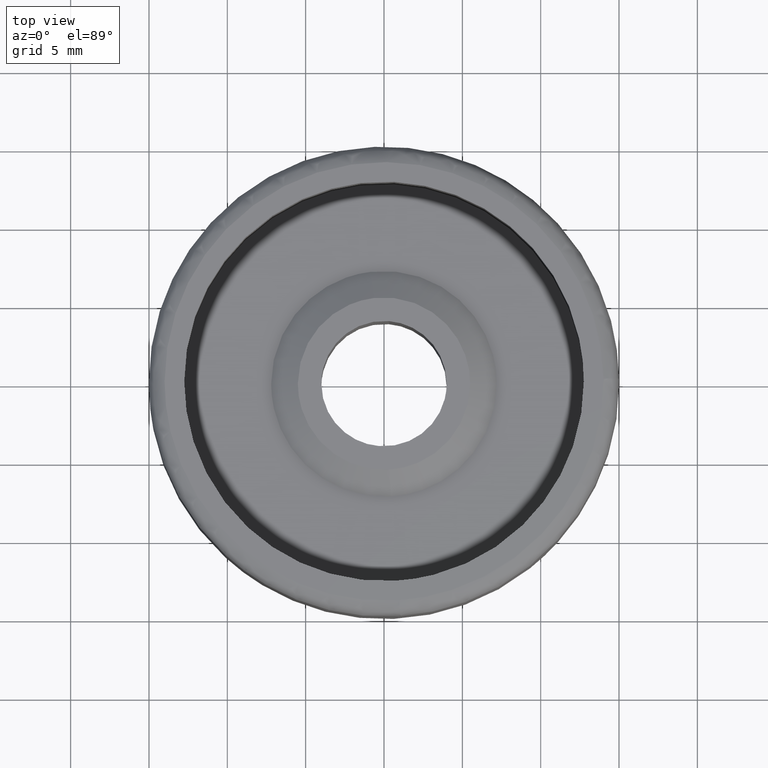
[diagram: clean part render]
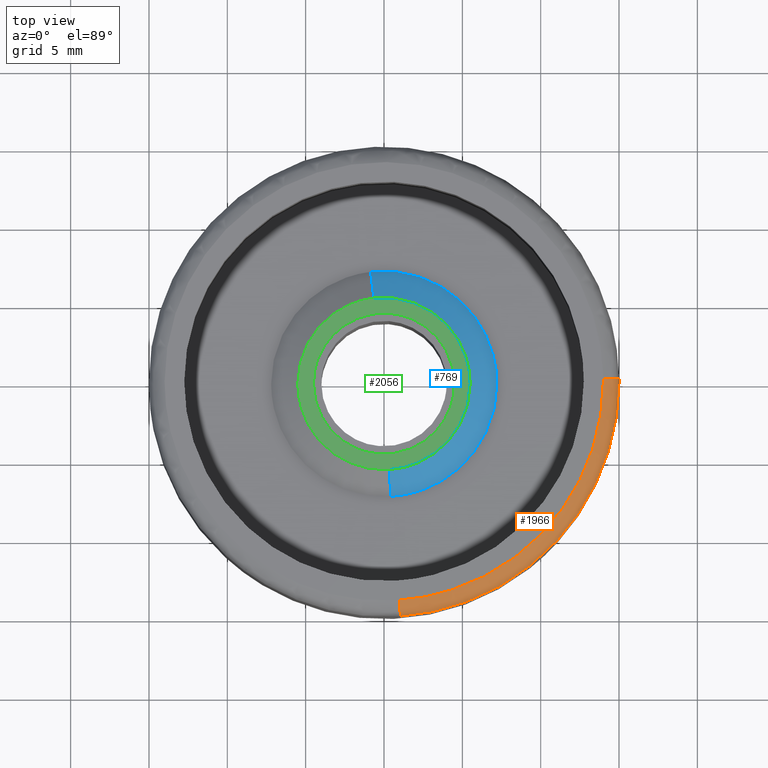
[diagram: same view with three faces highlighted in distinct colors, each labeled with its STEP entity id]
A machine part, top view with three faces highlighted in distinct colors.
Their STEP definitions:

[orange] entity #1966 — the highlighted face is a freeform B-spline surface patch.
#1595=CARTESIAN_POINT('',(14.998815787281290,0.188480712599963,18.499998351190680));
#1596=VERTEX_POINT('',#1595);
#1612=CARTESIAN_POINT('',(15.0,0.0,18.500000000000000));
#1613=VERTEX_POINT('',#1612);
#1614=CARTESIAN_POINT('',(14.998815787281290,0.188480712599963,18.499998351190687));
#1615=CARTESIAN_POINT('',(14.999999999997007,0.094244076467763,18.499999175595342));
#1616=CARTESIAN_POINT('',(15.0,0.0,18.500000000000000));
#1624=(BOUNDED_CURVE()B_SPLINE_CURVE(2,(#1614,#1615,#1616),.UNSPECIFIED.,.F.,.U.)B_SPLINE_CURVE_WITH_KNOTS((3,3),(0.497784411834908,0.500000000000000),.UNSPECIFIED.)CURVE()GEOMETRIC_REPRESENTATION_ITEM()RATIONAL_B_SPLINE_CURVE((0.994854562431305,0.997404277003045,1.0))REPRESENTATION_ITEM(''));
#1625=EDGE_CURVE('',#1596,#1613,#1624,.T.);
#1627=CARTESIAN_POINT('',(1.045989940321698,-14.963485725077071,18.499998345610489));
#1628=VERTEX_POINT('',#1627);
#1629=CARTESIAN_POINT('',(15.0,0.0,18.500000000000000));
#1630=CARTESIAN_POINT('',(14.999999999999815,-13.988060986637265,18.499999172805243));
#1631=CARTESIAN_POINT('',(1.045989940321698,-14.963485725077065,18.499998345610496));
#1639=(BOUNDED_CURVE()B_SPLINE_CURVE(2,(#1629,#1630,#1631),.UNSPECIFIED.,.F.,.U.)B_SPLINE_CURVE_WITH_KNOTS((3,3),(0.500000000000000,0.737833788060594),.UNSPECIFIED.)CURVE()GEOMETRIC_REPRESENTATION_ITEM()RATIONAL_B_SPLINE_CURVE((1.0,0.721360385089344,0.972880091122261))REPRESENTATION_ITEM(''));
#1640=EDGE_CURVE('',#1613,#1628,#1639,.T.);
#1848=CARTESIAN_POINT('',(0.976265522080275,-13.965919434004361,19.500000000000000));
#1849=VERTEX_POINT('',#1848);
#1850=CARTESIAN_POINT('',(0.976265522080276,-13.965919434004359,19.500000000000004));
#1851=CARTESIAN_POINT('',(1.045994472338115,-14.963487066586335,19.499999999521194));
#1852=CARTESIAN_POINT('',(1.045989940321698,-14.963485725077067,18.499998345610486));
#1860=(BOUNDED_CURVE()B_SPLINE_CURVE(2,(#1850,#1851,#1852),.UNSPECIFIED.,.F.,.U.)B_SPLINE_CURVE_WITH_KNOTS((3,3),(-1.734750791160875,-0.265247489273916),.UNSPECIFIED.)CURVE()GEOMETRIC_REPRESENTATION_ITEM()RATIONAL_B_SPLINE_CURVE((0.869031711702906,0.614497918858297,0.869032307398018))REPRESENTATION_ITEM(''));
#1861=EDGE_CURVE('',#1849,#1628,#1860,.T.);
#1880=CARTESIAN_POINT('',(13.998894619837420,0.175924558424704,19.500000000000000));
#1881=VERTEX_POINT('',#1880);
#1897=CARTESIAN_POINT('',(13.998894619837426,0.175924558424704,19.499999999999996));
#1898=CARTESIAN_POINT('',(14.998817373357861,0.188485676160666,19.499999998030702));
#1899=CARTESIAN_POINT('',(14.998815787281293,0.188480712599963,18.499998351190683));
#1907=(BOUNDED_CURVE()B_SPLINE_CURVE(2,(#1897,#1898,#1899),.UNSPECIFIED.,.F.,.U.)B_SPLINE_CURVE_WITH_KNOTS((3,3),(-1.734750789612121,-0.265247495072267),.UNSPECIFIED.)CURVE()GEOMETRIC_REPRESENTATION_ITEM()RATIONAL_B_SPLINE_CURVE((0.889029722851253,0.628638642994290,0.889030330748368))REPRESENTATION_ITEM(''));
#1908=EDGE_CURVE('',#1881,#1596,#1907,.T.);
#1915=CARTESIAN_POINT('',(13.929362452612859,0.175050745400173,19.497579327326303));
#1916=CARTESIAN_POINT('',(14.094672226188708,-12.979190602349494,19.497579327326299));
#1917=CARTESIAN_POINT('',(0.971416435151624,-13.896551054461080,19.497579327326306));
#1918=CARTESIAN_POINT('',(15.076349038249713,0.189464962666956,19.577537938228893));
#1919=CARTESIAN_POINT('',(15.255270927484926,-14.047937112748922,19.577537938228886));
#1920=CARTESIAN_POINT('',(1.051405854909818,-15.040835848564827,19.577537938228890));
#1921=CARTESIAN_POINT('',(14.996395080898305,0.188460178716530,18.430460899900229));
#1922=CARTESIAN_POINT('',(15.174368098953584,-13.973437102040874,18.430460899900236));
#1923=CARTESIAN_POINT('',(1.045829965238572,-14.961070227265223,18.430460899900229));
#1931=(BOUNDED_SURFACE()B_SPLINE_SURFACE(2,2,((#1915,#1918,#1921),(#1916,#1919,#1922),(#1917,#1920,#1923)),.UNSPECIFIED.,.F.,.F.,.U.)B_SPLINE_SURFACE_WITH_KNOTS((3,3),(3,3),(0.0,23.848304003572871),(0.0,1.822376984477074),.UNSPECIFIED.)GEOMETRIC_REPRESENTATION_ITEM()RATIONAL_B_SPLINE_SURFACE(((0.916342329272574,0.601326038482542,0.916342933350413),(0.658687493091140,0.432246692273748,0.658687927315888),(0.895729942378059,0.587799690785838,0.895730532867651)))REPRESENTATION_ITEM('')SURFACE());
#1932=ORIENTED_EDGE('',*,*,#1640,.F.);
#1933=ORIENTED_EDGE('',*,*,#1625,.F.);
#1934=ORIENTED_EDGE('',*,*,#1908,.F.);
#1935=CARTESIAN_POINT('',(14.0,0.0,19.500000000000000));
#1936=VERTEX_POINT('',#1935);
#1937=CARTESIAN_POINT('',(13.998894619837424,0.175924558424704,19.499999999999996));
#1938=CARTESIAN_POINT('',(14.000000000000005,0.087965751931862,19.500000000000004));
#1939=CARTESIAN_POINT('',(14.0,0.0,19.500000000000000));
#1947=(BOUNDED_CURVE()B_SPLINE_CURVE(2,(#1937,#1938,#1939),.UNSPECIFIED.,.F.,.U.)B_SPLINE_CURVE_WITH_KNOTS((3,3),(0.497784295920587,0.500000000000000),.UNSPECIFIED.)CURVE()GEOMETRIC_REPRESENTATION_ITEM()RATIONAL_B_SPLINE_CURVE((0.994854295641387,0.997404141200971,1.0))REPRESENTATION_ITEM(''));
#1948=EDGE_CURVE('',#1881,#1936,#1947,.T.);
#1949=ORIENTED_EDGE('',*,*,#1948,.T.);
#1950=CARTESIAN_POINT('',(14.0,0.0,19.500000000000000));
#1951=CARTESIAN_POINT('',(13.999999999999993,-13.055515861718762,19.500000000000004));
#1952=CARTESIAN_POINT('',(0.976265522080275,-13.965919434004357,19.500000000000004));
#1960=(BOUNDED_CURVE()B_SPLINE_CURVE(2,(#1950,#1951,#1952),.UNSPECIFIED.,.F.,.U.)B_SPLINE_CURVE_WITH_KNOTS((3,3),(0.500000000000000,0.737833686534952),.UNSPECIFIED.)CURVE()GEOMETRIC_REPRESENTATION_ITEM()RATIONAL_B_SPLINE_CURVE((1.0,0.721360504034033,0.972879876386680))REPRESENTATION_ITEM(''));
#1961=EDGE_CURVE('',#1936,#1849,#1960,.T.);
#1962=ORIENTED_EDGE('',*,*,#1961,.T.);
#1963=ORIENTED_EDGE('',*,*,#1861,.T.);
#1964=EDGE_LOOP('',(#1932,#1933,#1934,#1949,#1962,#1963));
#1965=FACE_OUTER_BOUND('',#1964,.T.);
#1966=ADVANCED_FACE('',(#1965),#1931,.T.);

[blue] entity #769 — the highlighted face is a freeform B-spline surface patch.
#667=CARTESIAN_POINT('',(-0.644171835639259,5.419349490129710,11.525000000000006));
#668=CARTESIAN_POINT('',(-0.489072381541763,5.437785411310767,11.525000000000002));
#669=CARTESIAN_POINT('',(-0.333172404511482,5.447320662387337,11.525000000000000));
#670=CARTESIAN_POINT('',(5.114148257875855,5.780493066898820,11.525000000000000));
#671=CARTESIAN_POINT('',(5.447320662387337,0.333172404511482,11.525000000000000));
#672=CARTESIAN_POINT('',(5.780493066898820,-5.114148257875855,11.525000000000000));
#673=CARTESIAN_POINT('',(0.333172404511482,-5.447320662387337,11.525000000000000));
#674=CARTESIAN_POINT('',(-0.854988355875896,7.192926567310616,10.474375000000004));
#675=CARTESIAN_POINT('',(-0.649129887809731,7.217395966727942,10.474374999999997));
#676=CARTESIAN_POINT('',(-0.442208911654458,7.230051795793695,10.474375000000000));
#677=CARTESIAN_POINT('',(6.787842884139237,7.672260707448152,10.474374999999998));
#678=CARTESIAN_POINT('',(7.230051795793695,0.442208911654458,10.474375000000000));
#679=CARTESIAN_POINT('',(7.672260707448152,-6.787842884139237,10.474374999999998));
#680=CARTESIAN_POINT('',(0.442208911654458,-7.230051795793695,10.474375000000000));
#688=(BOUNDED_SURFACE()B_SPLINE_SURFACE(2,1,((#667,#674),(#668,#675),(#669,#676),(#670,#677),(#671,#678),(#672,#679),(#673,#680)),.UNSPECIFIED.,.F.,.F.,.U.)B_SPLINE_SURFACE_WITH_KNOTS((3,2,2,3),(2,2),(0.0,0.480061092383547,12.481588401972200,24.483115711560849),(0.0,2.072156399630892),.UNSPECIFIED.)GEOMETRIC_REPRESENTATION_ITEM()RATIONAL_B_SPLINE_SURFACE(((0.977505800795127,0.977505800795127),(0.988284271247462,0.988284271247462),(1.0,1.0),(0.707106781186548,0.707106781186548),(1.0,1.0),(0.707106781186548,0.707106781186548),(1.0,1.0)))REPRESENTATION_ITEM('')SURFACE());
#689=CARTESIAN_POINT('',(-0.849846489608825,7.149668589820059,10.499999999993459));
#690=VERTEX_POINT('',#689);
#691=CARTESIAN_POINT('',(7.200000000000000,0.0,10.500000000000000));
#692=VERTEX_POINT('',#691);
#693=CARTESIAN_POINT('',(-0.849846489608825,7.149668589820060,10.499999999993461));
#694=CARTESIAN_POINT('',(-0.426413661573438,7.200000000000000,10.500000000000000));
#695=CARTESIAN_POINT('',(0.0,7.200000000000000,10.500000000000000));
#696=CARTESIAN_POINT('',(7.200000000000000,7.200000000000000,10.500000000000000));
#697=CARTESIAN_POINT('',(7.200000000000000,0.0,10.500000000000000));
#705=(BOUNDED_CURVE()B_SPLINE_CURVE(2,(#693,#694,#695,#696,#697),.UNSPECIFIED.,.F.,.U.)B_SPLINE_CURVE_WITH_KNOTS((3,2,3),(0.229562473511916,0.250000000000000,0.500000000000000),.UNSPECIFIED.)CURVE()GEOMETRIC_REPRESENTATION_ITEM()RATIONAL_B_SPLINE_CURVE((0.956026754180579,0.976055948329280,1.0,0.707106781186547,1.0))REPRESENTATION_ITEM(''));
#706=EDGE_CURVE('',#690,#692,#705,.T.);
#707=ORIENTED_EDGE('',*,*,#706,.F.);
#708=CARTESIAN_POINT('',(-0.649188290627220,5.461552395000489,11.499999999998771));
#709=VERTEX_POINT('',#708);
#710=CARTESIAN_POINT('',(-0.649188290627220,5.461552395000489,11.499999999998771));
#711=CARTESIAN_POINT('',(-0.849846489608825,7.149668589820059,10.499999999993459));
#712=QUASI_UNIFORM_CURVE('',1,(#710,#711),.UNSPECIFIED.,.F.,.U.);
#713=EDGE_CURVE('',#709,#690,#712,.T.);
#714=ORIENTED_EDGE('',*,*,#713,.F.);
#715=CARTESIAN_POINT('',(5.500000000000000,0.0,11.500000000000000));
#716=VERTEX_POINT('',#715);
#717=CARTESIAN_POINT('',(-0.649188290627220,5.461552395000488,11.499999999998767));
#718=CARTESIAN_POINT('',(-0.325732658100463,5.500000000000000,11.500000000000005));
#719=CARTESIAN_POINT('',(0.0,5.500000000000000,11.500000000000000));
#720=CARTESIAN_POINT('',(5.500000000000001,5.500000000000001,11.500000000000000));
#721=CARTESIAN_POINT('',(5.500000000000000,0.0,11.500000000000000));
#729=(BOUNDED_CURVE()B_SPLINE_CURVE(2,(#717,#718,#719,#720,#721),.UNSPECIFIED.,.F.,.U.)B_SPLINE_CURVE_WITH_KNOTS((3,2,3),(0.229562473514728,0.250000000000000,0.500000000000000),.UNSPECIFIED.)CURVE()GEOMETRIC_REPRESENTATION_ITEM()RATIONAL_B_SPLINE_CURVE((0.956026754186090,0.976055948332574,1.0,0.707106781186548,1.0))REPRESENTATION_ITEM(''));
#730=EDGE_CURVE('',#709,#716,#729,.T.);
#731=ORIENTED_EDGE('',*,*,#730,.T.);
#732=CARTESIAN_POINT('',(0.335766967512557,-5.489741391326234,11.499999999993950));
#733=VERTEX_POINT('',#732);
#734=CARTESIAN_POINT('',(5.500000000000000,0.0,11.500000000000000));
#735=CARTESIAN_POINT('',(5.500000000000000,-5.173883367848742,11.500000000000000));
#736=CARTESIAN_POINT('',(0.335766967512557,-5.489741391326235,11.499999999993957));
#744=(BOUNDED_CURVE()B_SPLINE_CURVE(2,(#734,#735,#736),.UNSPECIFIED.,.F.,.U.)B_SPLINE_CURVE_WITH_KNOTS((3,3),(0.500000000000000,0.739332962237555),.UNSPECIFIED.)CURVE()GEOMETRIC_REPRESENTATION_ITEM()RATIONAL_B_SPLINE_CURVE((1.0,0.719603993288336,0.976072041663743))REPRESENTATION_ITEM(''));
#745=EDGE_CURVE('',#716,#733,#744,.T.);
#746=ORIENTED_EDGE('',*,*,#745,.T.);
#747=CARTESIAN_POINT('',(0.439549484679779,-7.186570548639866,10.499999999997540));
#748=VERTEX_POINT('',#747);
#749=CARTESIAN_POINT('',(0.335766967512557,-5.489741391326234,11.499999999993950));
#750=CARTESIAN_POINT('',(0.439549484679779,-7.186570548639866,10.499999999997540));
#751=QUASI_UNIFORM_CURVE('',1,(#749,#750),.UNSPECIFIED.,.F.,.U.);
#752=EDGE_CURVE('',#733,#748,#751,.T.);
#753=ORIENTED_EDGE('',*,*,#752,.T.);
#754=CARTESIAN_POINT('',(7.200000000000000,0.0,10.500000000000000));
#755=CARTESIAN_POINT('',(7.200000000000000,-6.773083681667077,10.500000000000000));
#756=CARTESIAN_POINT('',(0.439549484679779,-7.186570548639866,10.499999999997540));
#764=(BOUNDED_CURVE()B_SPLINE_CURVE(2,(#754,#755,#756),.UNSPECIFIED.,.F.,.U.)B_SPLINE_CURVE_WITH_KNOTS((3,3),(0.500000000000000,0.739332962240597),.UNSPECIFIED.)CURVE()GEOMETRIC_REPRESENTATION_ITEM()RATIONAL_B_SPLINE_CURVE((1.0,0.719603993284772,0.976072041670263))REPRESENTATION_ITEM(''));
#765=EDGE_CURVE('',#692,#748,#764,.T.);
#766=ORIENTED_EDGE('',*,*,#765,.F.);
#767=EDGE_LOOP('',(#707,#714,#731,#746,#753,#766));
#768=FACE_OUTER_BOUND('',#767,.T.);
#769=ADVANCED_FACE('',(#768),#688,.T.);

[green] entity #2056 — the highlighted face is a freeform B-spline surface patch.
#503=CARTESIAN_POINT('',(-4.500000000000000,0.0,11.500000000000000));
#504=VERTEX_POINT('',#503);
#505=CARTESIAN_POINT('',(-0.353065930799224,-4.486128001797193,11.500000000000000));
#506=VERTEX_POINT('',#505);
#507=CARTESIAN_POINT('',(-4.500000000000000,0.0,11.500000000000000));
#508=CARTESIAN_POINT('',(-4.499999999999999,-4.159757212417433,11.500000000000002));
#509=CARTESIAN_POINT('',(-0.353065930799224,-4.486128001797193,11.499999999999998));
#517=(BOUNDED_CURVE()B_SPLINE_CURVE(2,(#507,#508,#509),.UNSPECIFIED.,.F.,.U.)B_SPLINE_CURVE_WITH_KNOTS((3,3),(0.0,0.236331300630939),.UNSPECIFIED.)CURVE()GEOMETRIC_REPRESENTATION_ITEM()RATIONAL_B_SPLINE_CURVE((1.0,0.723120658607339,0.969723356168000))REPRESENTATION_ITEM(''));
#518=EDGE_CURVE('',#504,#506,#517,.T.);
#559=CARTESIAN_POINT('',(0.353065930799223,4.486128001797193,11.500000000000000));
#560=VERTEX_POINT('',#559);
#566=CARTESIAN_POINT('',(0.353065930799222,4.486128001797193,11.500000000000004));
#567=CARTESIAN_POINT('',(0.176805481558544,4.500000000000000,11.500000000000004));
#568=CARTESIAN_POINT('',(0.0,4.500000000000000,11.500000000000000));
#569=CARTESIAN_POINT('',(-4.500000000000000,4.500000000000000,11.500000000000002));
#570=CARTESIAN_POINT('',(-4.500000000000000,0.0,11.500000000000000));
#578=(BOUNDED_CURVE()B_SPLINE_CURVE(2,(#566,#567,#568,#569,#570),.UNSPECIFIED.,.F.,.U.)B_SPLINE_CURVE_WITH_KNOTS((3,2,3),(0.736331300630939,0.750000000000000,1.0),.UNSPECIFIED.)CURVE()GEOMETRIC_REPRESENTATION_ITEM()RATIONAL_B_SPLINE_CURVE((0.969723356168001,0.983986122579209,1.0,0.707106781186547,1.0))REPRESENTATION_ITEM(''));
#579=EDGE_CURVE('',#560,#504,#578,.T.);
#602=CARTESIAN_POINT('',(4.500000000000000,0.0,11.500000000000000));
#603=VERTEX_POINT('',#602);
#604=CARTESIAN_POINT('',(-0.353065930799224,-4.486128001797193,11.499999999999995));
#605=CARTESIAN_POINT('',(-0.176805481558545,-4.500000000000001,11.499999999999996));
#606=CARTESIAN_POINT('',(0.0,-4.500000000000000,11.500000000000000));
#607=CARTESIAN_POINT('',(4.500000000000000,-4.500000000000000,11.500000000000002));
#608=CARTESIAN_POINT('',(4.500000000000000,0.0,11.500000000000000));
#616=(BOUNDED_CURVE()B_SPLINE_CURVE(2,(#604,#605,#606,#607,#608),.UNSPECIFIED.,.F.,.U.)B_SPLINE_CURVE_WITH_KNOTS((3,2,3),(0.236331300630939,0.250000000000000,0.500000000000000),.UNSPECIFIED.)CURVE()GEOMETRIC_REPRESENTATION_ITEM()RATIONAL_B_SPLINE_CURVE((0.969723356168000,0.983986122579209,1.0,0.707106781186547,1.0))REPRESENTATION_ITEM(''));
#617=EDGE_CURVE('',#506,#603,#616,.T.);
#619=CARTESIAN_POINT('',(4.500000000000000,0.0,11.500000000000000));
#620=CARTESIAN_POINT('',(4.500000000000000,4.159757212417430,11.500000000000000));
#621=CARTESIAN_POINT('',(0.353065930799223,4.486128001797193,11.500000000000000));
#629=(BOUNDED_CURVE()B_SPLINE_CURVE(2,(#619,#620,#621),.UNSPECIFIED.,.F.,.U.)B_SPLINE_CURVE_WITH_KNOTS((3,3),(0.500000000000000,0.736331300630939),.UNSPECIFIED.)CURVE()GEOMETRIC_REPRESENTATION_ITEM()RATIONAL_B_SPLINE_CURVE((1.0,0.723120658607339,0.969723356168000))REPRESENTATION_ITEM(''));
#630=EDGE_CURVE('',#603,#560,#629,.T.);
#708=CARTESIAN_POINT('',(-0.649188290627220,5.461552395000489,11.499999999998771));
#709=VERTEX_POINT('',#708);
#715=CARTESIAN_POINT('',(5.500000000000000,0.0,11.500000000000000));
#716=VERTEX_POINT('',#715);
#717=CARTESIAN_POINT('',(-0.649188290627220,5.461552395000488,11.499999999998767));
#718=CARTESIAN_POINT('',(-0.325732658100463,5.500000000000000,11.500000000000005));
#719=CARTESIAN_POINT('',(0.0,5.500000000000000,11.500000000000000));
#720=CARTESIAN_POINT('',(5.500000000000001,5.500000000000001,11.500000000000000));
#721=CARTESIAN_POINT('',(5.500000000000000,0.0,11.500000000000000));
#729=(BOUNDED_CURVE()B_SPLINE_CURVE(2,(#717,#718,#719,#720,#721),.UNSPECIFIED.,.F.,.U.)B_SPLINE_CURVE_WITH_KNOTS((3,2,3),(0.229562473514728,0.250000000000000,0.500000000000000),.UNSPECIFIED.)CURVE()GEOMETRIC_REPRESENTATION_ITEM()RATIONAL_B_SPLINE_CURVE((0.956026754186090,0.976055948332574,1.0,0.707106781186548,1.0))REPRESENTATION_ITEM(''));
#730=EDGE_CURVE('',#709,#716,#729,.T.);
#732=CARTESIAN_POINT('',(0.335766967512557,-5.489741391326234,11.499999999993950));
#733=VERTEX_POINT('',#732);
#734=CARTESIAN_POINT('',(5.500000000000000,0.0,11.500000000000000));
#735=CARTESIAN_POINT('',(5.500000000000000,-5.173883367848742,11.500000000000000));
#736=CARTESIAN_POINT('',(0.335766967512557,-5.489741391326235,11.499999999993957));
#744=(BOUNDED_CURVE()B_SPLINE_CURVE(2,(#734,#735,#736),.UNSPECIFIED.,.F.,.U.)B_SPLINE_CURVE_WITH_KNOTS((3,3),(0.500000000000000,0.739332962237555),.UNSPECIFIED.)CURVE()GEOMETRIC_REPRESENTATION_ITEM()RATIONAL_B_SPLINE_CURVE((1.0,0.719603993288336,0.976072041663743))REPRESENTATION_ITEM(''));
#745=EDGE_CURVE('',#716,#733,#744,.T.);
#819=CARTESIAN_POINT('',(-5.500000000000000,0.0,11.500000000000000));
#820=VERTEX_POINT('',#819);
#821=CARTESIAN_POINT('',(0.335766967512557,-5.489741391326235,11.499999999993953));
#822=CARTESIAN_POINT('',(0.168040198212652,-5.499999999999999,11.499999999999996));
#823=CARTESIAN_POINT('',(0.0,-5.500000000000000,11.500000000000000));
#824=CARTESIAN_POINT('',(-5.500000000000001,-5.500000000000001,11.500000000000000));
#825=CARTESIAN_POINT('',(-5.500000000000000,0.0,11.500000000000000));
#833=(BOUNDED_CURVE()B_SPLINE_CURVE(2,(#821,#822,#823,#824,#825),.UNSPECIFIED.,.F.,.U.)B_SPLINE_CURVE_WITH_KNOTS((3,2,3),(0.739332962237554,0.750000000000000,1.0),.UNSPECIFIED.)CURVE()GEOMETRIC_REPRESENTATION_ITEM()RATIONAL_B_SPLINE_CURVE((0.976072041663742,0.987502787898211,1.0,0.707106781186548,1.0))REPRESENTATION_ITEM(''));
#834=EDGE_CURVE('',#733,#820,#833,.T.);
#836=CARTESIAN_POINT('',(-5.500000000000000,0.0,11.500000000000000));
#837=CARTESIAN_POINT('',(-5.500000000000000,4.884959892705860,11.499999999999998));
#838=CARTESIAN_POINT('',(-0.649188290627220,5.461552395000488,11.499999999998767));
#846=(BOUNDED_CURVE()B_SPLINE_CURVE(2,(#836,#837,#838),.UNSPECIFIED.,.F.,.U.)B_SPLINE_CURVE_WITH_KNOTS((3,3),(0.0,0.229562473514728),.UNSPECIFIED.)CURVE()GEOMETRIC_REPRESENTATION_ITEM()RATIONAL_B_SPLINE_CURVE((1.0,0.731050832853973,0.956026754186090))REPRESENTATION_ITEM(''));
#847=EDGE_CURVE('',#820,#709,#846,.T.);
#2039=CARTESIAN_POINT('',(-6.049449978679865,-6.049316320088791,11.500000000000000));
#2040=CARTESIAN_POINT('',(6.049450273722857,-6.049316320088791,11.500000000000000));
#2041=CARTESIAN_POINT('',(-6.049449978679865,6.049349954989838,11.500000000000000));
#2042=CARTESIAN_POINT('',(6.049450273722857,6.049349954989838,11.500000000000000));
#2043=B_SPLINE_SURFACE_WITH_KNOTS('',1,1,((#2039,#2041),(#2040,#2042)),.UNSPECIFIED.,.F.,.F.,.U.,(2,2),(2,2),(0.0,12.098900252402720),(0.0,12.098666275078630),.UNSPECIFIED.);
#2044=ORIENTED_EDGE('',*,*,#834,.F.);
#2045=ORIENTED_EDGE('',*,*,#745,.F.);
#2046=ORIENTED_EDGE('',*,*,#730,.F.);
#2047=ORIENTED_EDGE('',*,*,#847,.F.);
#2048=EDGE_LOOP('',(#2044,#2045,#2046,#2047));
#2049=FACE_OUTER_BOUND('',#2048,.T.);
#2050=ORIENTED_EDGE('',*,*,#630,.F.);
#2051=ORIENTED_EDGE('',*,*,#617,.F.);
#2052=ORIENTED_EDGE('',*,*,#518,.F.);
#2053=ORIENTED_EDGE('',*,*,#579,.F.);
#2054=EDGE_LOOP('',(#2050,#2051,#2052,#2053));
#2055=FACE_BOUND('',#2054,.T.);
#2056=ADVANCED_FACE('',(#2049,#2055),#2043,.T.);